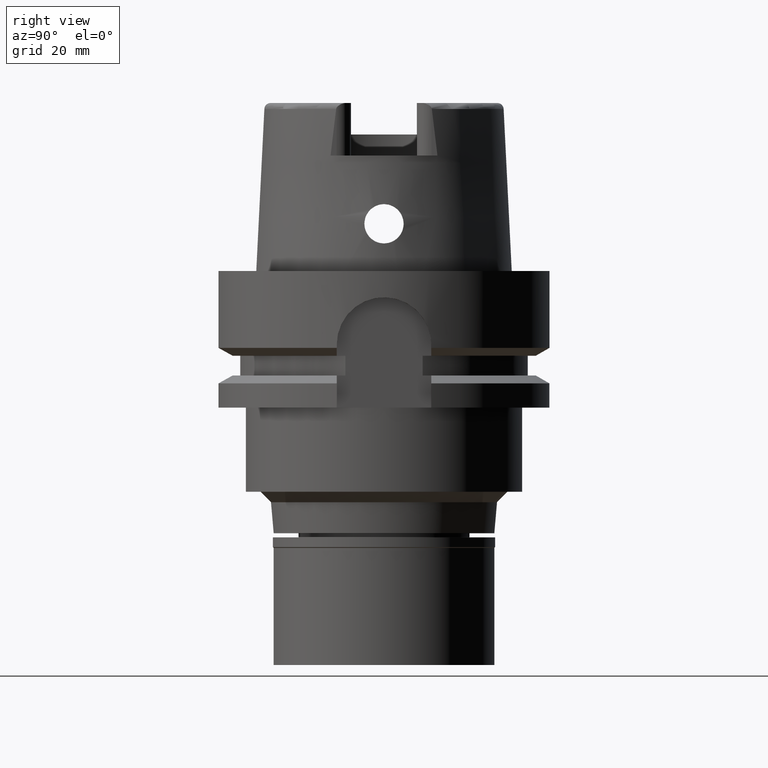
[diagram: clean part render]
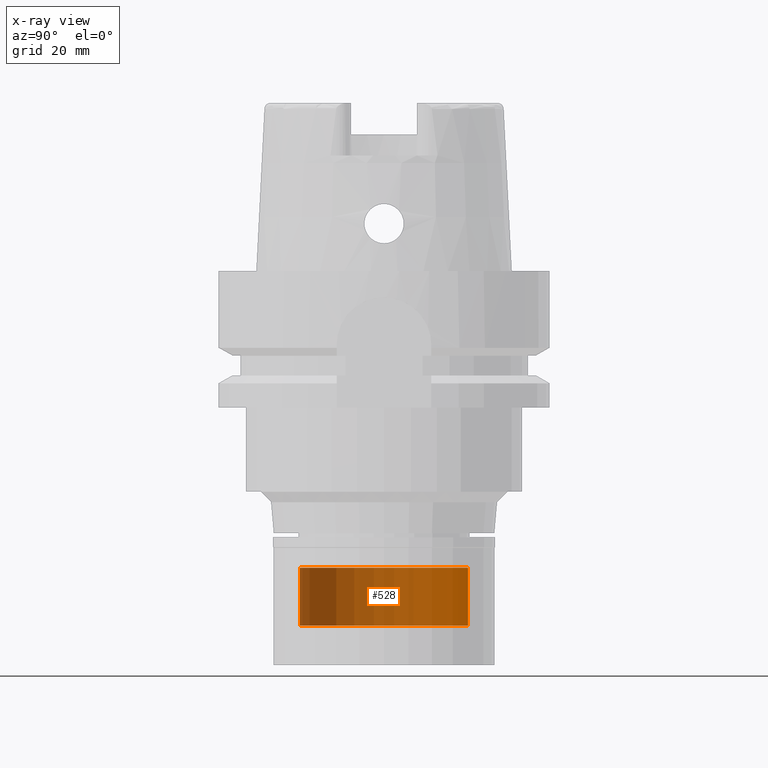
[diagram: x-ray — body ghosted, one internal face saturated and labeled with its STEP entity id]
A machine part, right view, then the same camera in x-ray: the body is ghosted and one INTERNAL B-rep face — a face not visible from any outside direction — is saturated and labeled: STEP entity #528.
In plain terms, the highlighted cylindrical surface (partial cylindrical patch) has radius 16 mm, axis along (0, 0, 1).
Its self-contained STEP definition (entity closure, byte-faithful):
#24 = AXIS2_PLACEMENT_3D ( 'NONE', #4344, #900, #2653 ) ;
#223 = LINE ( 'NONE', #1925, #5214 ) ;
#251 = DIRECTION ( 'NONE',  ( 0.0000000000000000000, 0.0000000000000000000, -1.000000000000000000 ) ) ;
#302 = CIRCLE ( 'NONE', #24, 16.00000000000000000 ) ;
#393 = DIRECTION ( 'NONE',  ( 0.0000000000000000000, 0.0000000000000000000, -1.000000000000000000 ) ) ;
#471 = ORIENTED_EDGE ( 'NONE', *, *, #5339, .T. ) ;
#528 = ADVANCED_FACE ( 'NONE', ( #894 ), #1911, .T. ) ;
#540 = CARTESIAN_POINT ( 'NONE',  ( 0.0000000000000000000, -16.00000000000000000, -67.50000000000000000 ) ) ;
#894 = FACE_OUTER_BOUND ( 'NONE', #3103, .T. ) ;
#900 = DIRECTION ( 'NONE',  ( 0.0000000000000000000, 0.0000000000000000000, 1.000000000000000000 ) ) ;
#942 = ORIENTED_EDGE ( 'NONE', *, *, #3975, .F. ) ;
#1551 = DIRECTION ( 'NONE',  ( 0.0000000000000000000, 0.0000000000000000000, -1.000000000000000000 ) ) ;
#1806 = DIRECTION ( 'NONE',  ( 0.0000000000000000000, 1.000000000000000000, 0.0000000000000000000 ) ) ;
#1911 = CYLINDRICAL_SURFACE ( 'NONE', #4718, 16.00000000000000000 ) ;
#1925 = CARTESIAN_POINT ( 'NONE',  ( 0.0000000000000000000, 16.00000000000000000, -56.50000000000000000 ) ) ;
#2243 = CIRCLE ( 'NONE', #2680, 16.00000000000000000 ) ;
#2344 = CARTESIAN_POINT ( 'NONE',  ( 0.0000000000000000000, -16.00000000000000000, -56.50000000000000000 ) ) ;
#2445 = CARTESIAN_POINT ( 'NONE',  ( 0.0000000000000000000, 16.00000000000000000, -67.50000000000000000 ) ) ;
#2653 = DIRECTION ( 'NONE',  ( 0.0000000000000000000, 1.000000000000000000, 0.0000000000000000000 ) ) ;
#2680 = AXIS2_PLACEMENT_3D ( 'NONE', #3700, #251, #3725 ) ;
#2715 = CARTESIAN_POINT ( 'NONE',  ( 0.0000000000000000000, 16.00000000000000000, -56.50000000000000000 ) ) ;
#3103 = EDGE_LOOP ( 'NONE', ( #471, #942, #5431, #4575 ) ) ;
#3326 = VERTEX_POINT ( 'NONE', #2344 ) ;
#3414 = CARTESIAN_POINT ( 'NONE',  ( 0.0000000000000000000, -16.00000000000000000, -56.50000000000000000 ) ) ;
#3610 = VERTEX_POINT ( 'NONE', #540 ) ;
#3700 = CARTESIAN_POINT ( 'NONE',  ( 0.0000000000000000000, 0.0000000000000000000, -56.50000000000000000 ) ) ;
#3725 = DIRECTION ( 'NONE',  ( 0.0000000000000000000, -1.000000000000000000, 0.0000000000000000000 ) ) ;
#3742 = VERTEX_POINT ( 'NONE', #2715 ) ;
#3975 = EDGE_CURVE ( 'NONE', #3326, #3610, #4943, .T. ) ;
#4309 = VERTEX_POINT ( 'NONE', #2445 ) ;
#4344 = CARTESIAN_POINT ( 'NONE',  ( 0.0000000000000000000, 0.0000000000000000000, -67.50000000000000000 ) ) ;
#4446 = CARTESIAN_POINT ( 'NONE',  ( 0.0000000000000000000, 0.0000000000000000000, 0.0000000000000000000 ) ) ;
#4551 = EDGE_CURVE ( 'NONE', #3326, #3742, #2243, .T. ) ;
#4575 = ORIENTED_EDGE ( 'NONE', *, *, #5047, .T. ) ;
#4718 = AXIS2_PLACEMENT_3D ( 'NONE', #4446, #4891, #1806 ) ;
#4891 = DIRECTION ( 'NONE',  ( 0.0000000000000000000, 0.0000000000000000000, 1.000000000000000000 ) ) ;
#4943 = LINE ( 'NONE', #3414, #5293 ) ;
#5047 = EDGE_CURVE ( 'NONE', #3742, #4309, #223, .T. ) ;
#5214 = VECTOR ( 'NONE', #1551, 1000.000000000000000 ) ;
#5293 = VECTOR ( 'NONE', #393, 1000.000000000000000 ) ;
#5339 = EDGE_CURVE ( 'NONE', #4309, #3610, #302, .T. ) ;
#5431 = ORIENTED_EDGE ( 'NONE', *, *, #4551, .T. ) ;